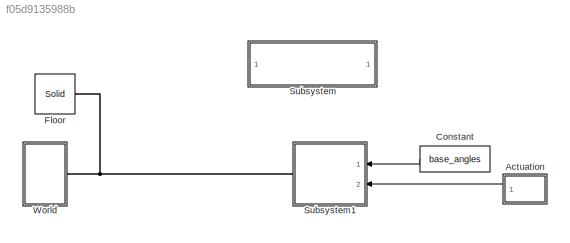
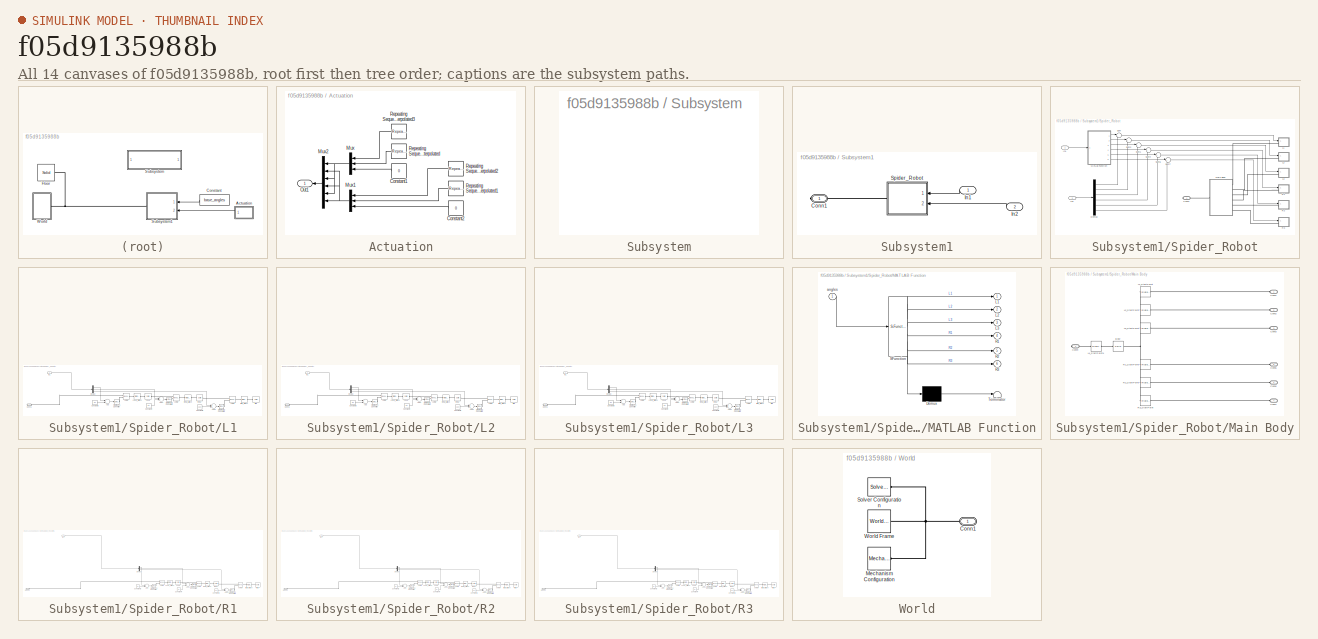
[diagram: thumbnail index - all 14 canvases of the model, root first then tree order]
MODEL slx_f05d9135988b
KIND model
CONFIG AbsTol = auto
CONFIG EnableMultiTasking = on
CONFIG FixedStep = 0.01
CONFIG MaxStep = auto
CONFIG MinStep = auto
CONFIG RelTol = 1e-3
CONFIG SampleTimeConstraint = Unconstrained
CONFIG Solver = FixedStepAuto
CONFIG SolverName = FixedStepAuto
CONFIG StartTime = 0.0
CONFIG StopTime = 20
BLOCK [SubSystem] Actuation
  Ports = [0, 1]
  RequestExecContextInheritance = off
BLOCK [Constant] Actuation/Constant1
  Value = 0
BLOCK [Constant] Actuation/Constant2
  Value = 0
BLOCK [Mux] Actuation/Mux
  DisplayOption = bar
  Inputs = 3
  Ports = [3, 1]
BLOCK [Mux] Actuation/Mux1
  DisplayOption = bar
  Inputs = 3
  Ports = [3, 1]
BLOCK [Mux] Actuation/Mux2
  DisplayOption = bar
  Inputs = 6
  Ports = [6, 1]
BLOCK [Outport] Actuation/Out1
  IconDisplay = Port number
BLOCK [Reference] Actuation/Repeating Sequence Interpolated  REF=simulink/Sources/Repeating
Sequence
Interpolated
  Ports = [0, 1]
  SourceBlock = simulink/Sources/Repeating\nSequence\nInterpolated
  SourceProductBaseCode = SL
  SourceProductName = Simulink
  SourceType = Repeating Sequence Interpolated
BLOCK [Reference] Actuation/Repeating Sequence Interpolated1  REF=simulink/Sources/Repeating
Sequence
Interpolated
  Ports = [0, 1]
  SourceBlock = simulink/Sources/Repeating\nSequence\nInterpolated
  SourceProductBaseCode = SL
  SourceProductName = Simulink
  SourceType = Repeating Sequence Interpolated
BLOCK [Reference] Actuation/Repeating Sequence Interpolated2  REF=simulink/Sources/Repeating
Sequence
Interpolated
  Ports = [0, 1]
  SourceBlock = simulink/Sources/Repeating\nSequence\nInterpolated
  SourceProductBaseCode = SL
  SourceProductName = Simulink
  SourceType = Repeating Sequence Interpolated
BLOCK [Reference] Actuation/Repeating Sequence Interpolated3  REF=simulink/Sources/Repeating
Sequence
Interpolated
  Ports = [0, 1]
  SourceBlock = simulink/Sources/Repeating\nSequence\nInterpolated
  SourceProductBaseCode = SL
  SourceProductName = Simulink
  SourceType = Repeating Sequence Interpolated
BLOCK [Constant] Constant
  Value = base_angles
BLOCK [Reference] Floor  REF=sm_lib/Body Elements/Solid
  Ports = [0, 0, 0, 0, 0, 0, 1]
  SourceBlock = sm_lib/Body Elements/Solid
  SourceProductBaseCode = MS
  SourceProductName = Simscape Multibody
  SourceType = Solid
BLOCK [SubSystem] Subsystem
  OpenFcn = open_system('sm_lib')
  Ports = []
  RequestExecContextInheritance = off
  ShowPortLabels = none
BLOCK [SubSystem] Subsystem1
  Ports = [2, 0, 0, 0, 0, 0, 1]
  RequestExecContextInheritance = off
BLOCK [PMIOPort] Subsystem1/Conn1
  Side = Right
BLOCK [Inport] Subsystem1/In1
  IconDisplay = Port number
BLOCK [Inport] Subsystem1/In2
  IconDisplay = Port number
  Port = 2
BLOCK [SubSystem] Subsystem1/Spider_Robot
  Ports = [2, 0, 0, 0, 0, 0, 1]
  RequestExecContextInheritance = off
BLOCK [PMIOPort] Subsystem1/Spider_Robot/Conn1
  Side = Right
BLOCK [Demux] Subsystem1/Spider_Robot/Demux
  DisplayOption = bar
  Outputs = 6
  Ports = [1, 6]
BLOCK [Inport] Subsystem1/Spider_Robot/In1
  IconDisplay = Port number
BLOCK [Inport] Subsystem1/Spider_Robot/In2
  IconDisplay = Port number
  Port = 2
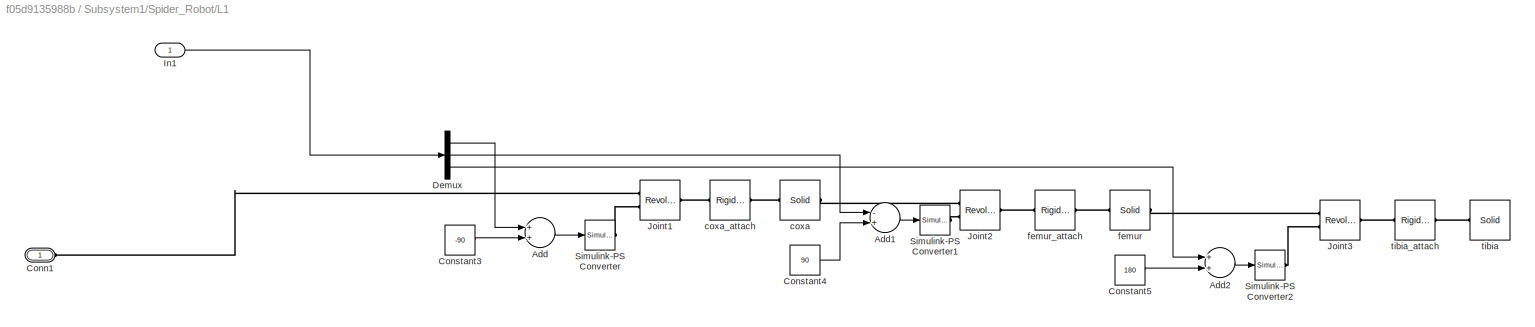
BLOCK [SubSystem] Subsystem1/Spider_Robot/L1
  Ports = [1, 0, 0, 0, 0, 1]
  RequestExecContextInheritance = off
BLOCK [Sum] Subsystem1/Spider_Robot/L1/Add
  InputSameDT = off
  OutDataTypeStr = Inherit: Inherit via internal rule
  Ports = [2, 1]
  SaturateOnIntegerOverflow = off
BLOCK [Sum] Subsystem1/Spider_Robot/L1/Add1
  InputSameDT = off
  Inputs = -+
  OutDataTypeStr = Inherit: Inherit via internal rule
  Ports = [2, 1]
  SaturateOnIntegerOverflow = off
BLOCK [Sum] Subsystem1/Spider_Robot/L1/Add2
  InputSameDT = off
  OutDataTypeStr = Inherit: Inherit via internal rule
  Ports = [2, 1]
  SaturateOnIntegerOverflow = off
BLOCK [PMIOPort] Subsystem1/Spider_Robot/L1/Conn1
  Side = Left
BLOCK [Constant] Subsystem1/Spider_Robot/L1/Constant3
  Value = -90
BLOCK [Constant] Subsystem1/Spider_Robot/L1/Constant4
  Value = 90
BLOCK [Constant] Subsystem1/Spider_Robot/L1/Constant5
  Value = 180
BLOCK [Demux] Subsystem1/Spider_Robot/L1/Demux
  DisplayOption = bar
  Outputs = 3
  Ports = [1, 3]
BLOCK [Inport] Subsystem1/Spider_Robot/L1/In1
  IconDisplay = Port number
BLOCK [Reference] Subsystem1/Spider_Robot/L1/Joint1  REF=sm_lib/Joints/Revolute Joint
  Ports = [0, 0, 0, 0, 0, 2, 1]
  SourceBlock = sm_lib/Joints/Revolute Joint
  SourceProductBaseCode = MS
  SourceProductName = Simscape Multibody
  SourceType = Revolute Joint
BLOCK [Reference] Subsystem1/Spider_Robot/L1/Joint2  REF=sm_lib/Joints/Revolute Joint
  Ports = [0, 0, 0, 0, 0, 2, 1]
  SourceBlock = sm_lib/Joints/Revolute Joint
  SourceProductBaseCode = MS
  SourceProductName = Simscape Multibody
  SourceType = Revolute Joint
BLOCK [Reference] Subsystem1/Spider_Robot/L1/Joint3  REF=sm_lib/Joints/Revolute Joint
  Ports = [0, 0, 0, 0, 0, 2, 1]
  SourceBlock = sm_lib/Joints/Revolute Joint
  SourceProductBaseCode = MS
  SourceProductName = Simscape Multibody
  SourceType = Revolute Joint
BLOCK [Reference] Subsystem1/Spider_Robot/L1/Simulink-PS Converter  REF=nesl_utility/Simulink-PS
Converter
  Ports = [1, 0, 0, 0, 0, 0, 1]
  SourceBlock = nesl_utility/Simulink-PS\nConverter
  SourceProductBaseCode = SS
  SourceProductName = Simscape
  SourceType = Simulink-PS\nConverter
BLOCK [Reference] Subsystem1/Spider_Robot/L1/Simulink-PS Converter1  REF=nesl_utility/Simulink-PS
Converter
  Ports = [1, 0, 0, 0, 0, 0, 1]
  SourceBlock = nesl_utility/Simulink-PS\nConverter
  SourceProductBaseCode = SS
  SourceProductName = Simscape
  SourceType = Simulink-PS\nConverter
BLOCK [Reference] Subsystem1/Spider_Robot/L1/Simulink-PS Converter2  REF=nesl_utility/Simulink-PS
Converter
  Ports = [1, 0, 0, 0, 0, 0, 1]
  SourceBlock = nesl_utility/Simulink-PS\nConverter
  SourceProductBaseCode = SS
  SourceProductName = Simscape
  SourceType = Simulink-PS\nConverter
BLOCK [Reference] Subsystem1/Spider_Robot/L1/coxa  REF=sm_lib/Body Elements/Solid
  Ports = [0, 0, 0, 0, 0, 1, 1]
  SourceBlock = sm_lib/Body Elements/Solid
  SourceProductBaseCode = MS
  SourceProductName = Simscape Multibody
  SourceType = Solid
BLOCK [Reference] Subsystem1/Spider_Robot/L1/coxa_attach  REF=sm_lib/Frames and
Transforms/Rigid
Transform
  Ports = [0, 0, 0, 0, 0, 1, 1]
  SourceBlock = sm_lib/Frames and\nTransforms/Rigid\nTransform
  SourceProductBaseCode = MS
  SourceProductName = Simscape Multibody
  SourceType = Rigid\nTransform
BLOCK [Reference] Subsystem1/Spider_Robot/L1/femur  REF=sm_lib/Body Elements/Solid
  Ports = [0, 0, 0, 0, 0, 1, 1]
  SourceBlock = sm_lib/Body Elements/Solid
  SourceProductBaseCode = MS
  SourceProductName = Simscape Multibody
  SourceType = Solid
BLOCK [Reference] Subsystem1/Spider_Robot/L1/femur_attach  REF=sm_lib/Frames and
Transforms/Rigid
Transform
  Ports = [0, 0, 0, 0, 0, 1, 1]
  SourceBlock = sm_lib/Frames and\nTransforms/Rigid\nTransform
  SourceProductBaseCode = MS
  SourceProductName = Simscape Multibody
  SourceType = Rigid\nTransform
BLOCK [Reference] Subsystem1/Spider_Robot/L1/tibia  REF=sm_lib/Body Elements/Solid
  Ports = [0, 0, 0, 0, 0, 1]
  SourceBlock = sm_lib/Body Elements/Solid
  SourceProductBaseCode = MS
  SourceProductName = Simscape Multibody
  SourceType = Solid
BLOCK [Reference] Subsystem1/Spider_Robot/L1/tibia_attach  REF=sm_lib/Frames and
Transforms/Rigid
Transform
  Ports = [0, 0, 0, 0, 0, 1, 1]
  SourceBlock = sm_lib/Frames and\nTransforms/Rigid\nTransform
  SourceProductBaseCode = MS
  SourceProductName = Simscape Multibody
  SourceType = Rigid\nTransform
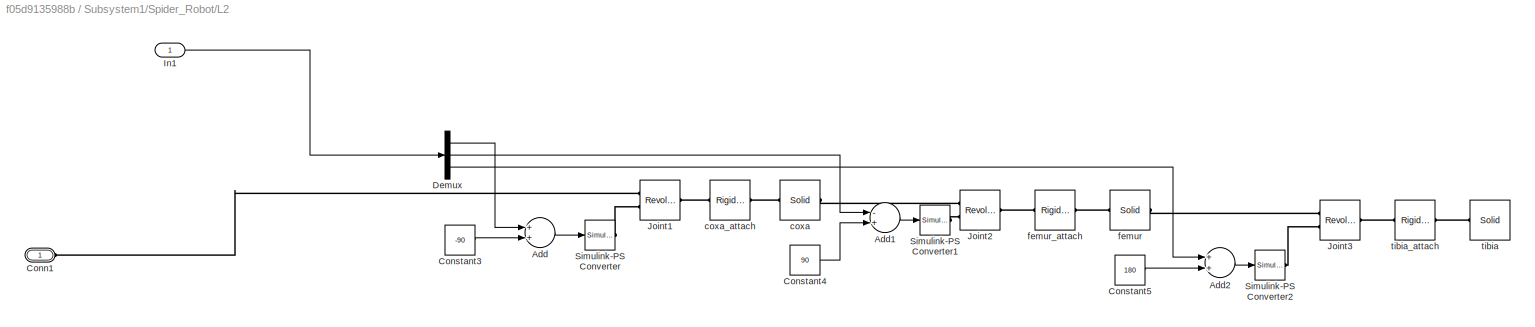
BLOCK [SubSystem] Subsystem1/Spider_Robot/L2
  Ports = [1, 0, 0, 0, 0, 1]
  RequestExecContextInheritance = off
BLOCK [Sum] Subsystem1/Spider_Robot/L2/Add
  InputSameDT = off
  OutDataTypeStr = Inherit: Inherit via internal rule
  Ports = [2, 1]
  SaturateOnIntegerOverflow = off
BLOCK [Sum] Subsystem1/Spider_Robot/L2/Add1
  InputSameDT = off
  Inputs = -+
  OutDataTypeStr = Inherit: Inherit via internal rule
  Ports = [2, 1]
  SaturateOnIntegerOverflow = off
BLOCK [Sum] Subsystem1/Spider_Robot/L2/Add2
  InputSameDT = off
  OutDataTypeStr = Inherit: Inherit via internal rule
  Ports = [2, 1]
  SaturateOnIntegerOverflow = off
BLOCK [PMIOPort] Subsystem1/Spider_Robot/L2/Conn1
  Side = Left
BLOCK [Constant] Subsystem1/Spider_Robot/L2/Constant3
  Value = -90
BLOCK [Constant] Subsystem1/Spider_Robot/L2/Constant4
  Value = 90
BLOCK [Constant] Subsystem1/Spider_Robot/L2/Constant5
  Value = 180
BLOCK [Demux] Subsystem1/Spider_Robot/L2/Demux
  DisplayOption = bar
  Outputs = 3
  Ports = [1, 3]
BLOCK [Inport] Subsystem1/Spider_Robot/L2/In1
  IconDisplay = Port number
BLOCK [Reference] Subsystem1/Spider_Robot/L2/Joint1  REF=sm_lib/Joints/Revolute Joint
  Ports = [0, 0, 0, 0, 0, 2, 1]
  SourceBlock = sm_lib/Joints/Revolute Joint
  SourceProductBaseCode = MS
  SourceProductName = Simscape Multibody
  SourceType = Revolute Joint
BLOCK [Reference] Subsystem1/Spider_Robot/L2/Joint2  REF=sm_lib/Joints/Revolute Joint
  Ports = [0, 0, 0, 0, 0, 2, 1]
  SourceBlock = sm_lib/Joints/Revolute Joint
  SourceProductBaseCode = MS
  SourceProductName = Simscape Multibody
  SourceType = Revolute Joint
BLOCK [Reference] Subsystem1/Spider_Robot/L2/Joint3  REF=sm_lib/Joints/Revolute Joint
  Ports = [0, 0, 0, 0, 0, 2, 1]
  SourceBlock = sm_lib/Joints/Revolute Joint
  SourceProductBaseCode = MS
  SourceProductName = Simscape Multibody
  SourceType = Revolute Joint
BLOCK [Reference] Subsystem1/Spider_Robot/L2/Simulink-PS Converter  REF=nesl_utility/Simulink-PS
Converter
  Ports = [1, 0, 0, 0, 0, 0, 1]
  SourceBlock = nesl_utility/Simulink-PS\nConverter
  SourceProductBaseCode = SS
  SourceProductName = Simscape
  SourceType = Simulink-PS\nConverter
BLOCK [Reference] Subsystem1/Spider_Robot/L2/Simulink-PS Converter1  REF=nesl_utility/Simulink-PS
Converter
  Ports = [1, 0, 0, 0, 0, 0, 1]
  SourceBlock = nesl_utility/Simulink-PS\nConverter
  SourceProductBaseCode = SS
  SourceProductName = Simscape
  SourceType = Simulink-PS\nConverter
BLOCK [Reference] Subsystem1/Spider_Robot/L2/Simulink-PS Converter2  REF=nesl_utility/Simulink-PS
Converter
  Ports = [1, 0, 0, 0, 0, 0, 1]
  SourceBlock = nesl_utility/Simulink-PS\nConverter
  SourceProductBaseCode = SS
  SourceProductName = Simscape
  SourceType = Simulink-PS\nConverter
BLOCK [Reference] Subsystem1/Spider_Robot/L2/coxa  REF=sm_lib/Body Elements/Solid
  Ports = [0, 0, 0, 0, 0, 1, 1]
  SourceBlock = sm_lib/Body Elements/Solid
  SourceProductBaseCode = MS
  SourceProductName = Simscape Multibody
  SourceType = Solid
BLOCK [Reference] Subsystem1/Spider_Robot/L2/coxa_attach  REF=sm_lib/Frames and
Transforms/Rigid
Transform
  Ports = [0, 0, 0, 0, 0, 1, 1]
  SourceBlock = sm_lib/Frames and\nTransforms/Rigid\nTransform
  SourceProductBaseCode = MS
  SourceProductName = Simscape Multibody
  SourceType = Rigid\nTransform
BLOCK [Reference] Subsystem1/Spider_Robot/L2/femur  REF=sm_lib/Body Elements/Solid
  Ports = [0, 0, 0, 0, 0, 1, 1]
  SourceBlock = sm_lib/Body Elements/Solid
  SourceProductBaseCode = MS
  SourceProductName = Simscape Multibody
  SourceType = Solid
BLOCK [Reference] Subsystem1/Spider_Robot/L2/femur_attach  REF=sm_lib/Frames and
Transforms/Rigid
Transform
  Ports = [0, 0, 0, 0, 0, 1, 1]
  SourceBlock = sm_lib/Frames and\nTransforms/Rigid\nTransform
  SourceProductBaseCode = MS
  SourceProductName = Simscape Multibody
  SourceType = Rigid\nTransform
BLOCK [Reference] Subsystem1/Spider_Robot/L2/tibia  REF=sm_lib/Body Elements/Solid
  Ports = [0, 0, 0, 0, 0, 1]
  SourceBlock = sm_lib/Body Elements/Solid
  SourceProductBaseCode = MS
  SourceProductName = Simscape Multibody
  SourceType = Solid
BLOCK [Reference] Subsystem1/Spider_Robot/L2/tibia_attach  REF=sm_lib/Frames and
Transforms/Rigid
Transform
  Ports = [0, 0, 0, 0, 0, 1, 1]
  SourceBlock = sm_lib/Frames and\nTransforms/Rigid\nTransform
  SourceProductBaseCode = MS
  SourceProductName = Simscape Multibody
  SourceType = Rigid\nTransform
BLOCK [SubSystem] Subsystem1/Spider_Robot/L3
  Ports = [1, 0, 0, 0, 0, 1]
  RequestExecContextInheritance = off
BLOCK [Sum] Subsystem1/Spider_Robot/L3/Add
  InputSameDT = off
  OutDataTypeStr = Inherit: Inherit via internal rule
  Ports = [2, 1]
  SaturateOnIntegerOverflow = off
BLOCK [Sum] Subsystem1/Spider_Robot/L3/Add1
  InputSameDT = off
  Inputs = -+
  OutDataTypeStr = Inherit: Inherit via internal rule
  Ports = [2, 1]
  SaturateOnIntegerOverflow = off
BLOCK [Sum] Subsystem1/Spider_Robot/L3/Add2
  InputSameDT = off
  OutDataTypeStr = Inherit: Inherit via internal rule
  Ports = [2, 1]
  SaturateOnIntegerOverflow = off
BLOCK [PMIOPort] Subsystem1/Spider_Robot/L3/Conn1
  Side = Left
BLOCK [Constant] Subsystem1/Spider_Robot/L3/Constant3
  Value = -90
BLOCK [Constant] Subsystem1/Spider_Robot/L3/Constant4
  Value = 90
BLOCK [Constant] Subsystem1/Spider_Robot/L3/Constant5
  Value = 180
BLOCK [Demux] Subsystem1/Spider_Robot/L3/Demux
  DisplayOption = bar
  Outputs = 3
  Ports = [1, 3]
BLOCK [Inport] Subsystem1/Spider_Robot/L3/In1
  IconDisplay = Port number
BLOCK [Reference] Subsystem1/Spider_Robot/L3/Joint1  REF=sm_lib/Joints/Revolute Joint
  Ports = [0, 0, 0, 0, 0, 2, 1]
  SourceBlock = sm_lib/Joints/Revolute Joint
  SourceProductBaseCode = MS
  SourceProductName = Simscape Multibody
  SourceType = Revolute Joint
BLOCK [Reference] Subsystem1/Spider_Robot/L3/Joint2  REF=sm_lib/Joints/Revolute Joint
  Ports = [0, 0, 0, 0, 0, 2, 1]
  SourceBlock = sm_lib/Joints/Revolute Joint
  SourceProductBaseCode = MS
  SourceProductName = Simscape Multibody
  SourceType = Revolute Joint
BLOCK [Reference] Subsystem1/Spider_Robot/L3/Joint3  REF=sm_lib/Joints/Revolute Joint
  Ports = [0, 0, 0, 0, 0, 2, 1]
  SourceBlock = sm_lib/Joints/Revolute Joint
  SourceProductBaseCode = MS
  SourceProductName = Simscape Multibody
  SourceType = Revolute Joint
BLOCK [Reference] Subsystem1/Spider_Robot/L3/Simulink-PS Converter  REF=nesl_utility/Simulink-PS
Converter
  Ports = [1, 0, 0, 0, 0, 0, 1]
  SourceBlock = nesl_utility/Simulink-PS\nConverter
  SourceProductBaseCode = SS
  SourceProductName = Simscape
  SourceType = Simulink-PS\nConverter
BLOCK [Reference] Subsystem1/Spider_Robot/L3/Simulink-PS Converter1  REF=nesl_utility/Simulink-PS
Converter
  Ports = [1, 0, 0, 0, 0, 0, 1]
  SourceBlock = nesl_utility/Simulink-PS\nConverter
  SourceProductBaseCode = SS
  SourceProductName = Simscape
  SourceType = Simulink-PS\nConverter
BLOCK [Reference] Subsystem1/Spider_Robot/L3/Simulink-PS Converter2  REF=nesl_utility/Simulink-PS
Converter
  Ports = [1, 0, 0, 0, 0, 0, 1]
  SourceBlock = nesl_utility/Simulink-PS\nConverter
  SourceProductBaseCode = SS
  SourceProductName = Simscape
  SourceType = Simulink-PS\nConverter
BLOCK [Reference] Subsystem1/Spider_Robot/L3/coxa  REF=sm_lib/Body Elements/Solid
  Ports = [0, 0, 0, 0, 0, 1, 1]
  SourceBlock = sm_lib/Body Elements/Solid
  SourceProductBaseCode = MS
  SourceProductName = Simscape Multibody
  SourceType = Solid
BLOCK [Reference] Subsystem1/Spider_Robot/L3/coxa_attach  REF=sm_lib/Frames and
Transforms/Rigid
Transform
  Ports = [0, 0, 0, 0, 0, 1, 1]
  SourceBlock = sm_lib/Frames and\nTransforms/Rigid\nTransform
  SourceProductBaseCode = MS
  SourceProductName = Simscape Multibody
  SourceType = Rigid\nTransform
BLOCK [Reference] Subsystem1/Spider_Robot/L3/femur  REF=sm_lib/Body Elements/Solid
  Ports = [0, 0, 0, 0, 0, 1, 1]
  SourceBlock = sm_lib/Body Elements/Solid
  SourceProductBaseCode = MS
  SourceProductName = Simscape Multibody
  SourceType = Solid
BLOCK [Reference] Subsystem1/Spider_Robot/L3/femur_attach  REF=sm_lib/Frames and
Transforms/Rigid
Transform
  Ports = [0, 0, 0, 0, 0, 1, 1]
  SourceBlock = sm_lib/Frames and\nTransforms/Rigid\nTransform
  SourceProductBaseCode = MS
  SourceProductName = Simscape Multibody
  SourceType = Rigid\nTransform
BLOCK [Reference] Subsystem1/Spider_Robot/L3/tibia  REF=sm_lib/Body Elements/Solid
  Ports = [0, 0, 0, 0, 0, 1]
  SourceBlock = sm_lib/Body Elements/Solid
  SourceProductBaseCode = MS
  SourceProductName = Simscape Multibody
  SourceType = Solid
BLOCK [Reference] Subsystem1/Spider_Robot/L3/tibia_attach  REF=sm_lib/Frames and
Transforms/Rigid
Transform
  Ports = [0, 0, 0, 0, 0, 1, 1]
  SourceBlock = sm_lib/Frames and\nTransforms/Rigid\nTransform
  SourceProductBaseCode = MS
  SourceProductName = Simscape Multibody
  SourceType = Rigid\nTransform
BLOCK [SubSystem] Subsystem1/Spider_Robot/MATLAB Function
  ErrorFcn = Stateflow.Translate.translate
  PermitHierarchicalResolution = ExplicitOnly
  Ports = [1, 6]
  RequestExecContextInheritance = off
  SFBlockType = MATLAB Function
  TreatAsAtomicUnit = on
BLOCK [Demux] Subsystem1/Spider_Robot/MATLAB Function/ Demux 
  Outputs = 1
  Ports = [1, 1]
BLOCK [S-Function] Subsystem1/Spider_Robot/MATLAB Function/ SFunction 
  EnableBusSupport = on
  FunctionName = sf_sfun
  PortCounts = [1 7]
  Ports = [1, 7]
  SFcnIsStateOwnerBlock = off
  SFunctionDeploymentMode = off
  Tag = Stateflow S-Function spider_basic 2
BLOCK [Terminator] Subsystem1/Spider_Robot/MATLAB Function/ Terminator 
BLOCK [Outport] Subsystem1/Spider_Robot/MATLAB Function/L1
  IconDisplay = Port number
BLOCK [Outport] Subsystem1/Spider_Robot/MATLAB Function/L2
  IconDisplay = Port number
  Port = 2
BLOCK [Outport] Subsystem1/Spider_Robot/MATLAB Function/L3
  IconDisplay = Port number
  Port = 3
BLOCK [Outport] Subsystem1/Spider_Robot/MATLAB Function/R1
  IconDisplay = Port number
  Port = 4
BLOCK [Outport] Subsystem1/Spider_Robot/MATLAB Function/R2
  IconDisplay = Port number
  Port = 5
BLOCK [Outport] Subsystem1/Spider_Robot/MATLAB Function/R3
  IconDisplay = Port number
  Port = 6
BLOCK [Inport] Subsystem1/Spider_Robot/MATLAB Function/angles
  IconDisplay = Port number
BLOCK [SubSystem] Subsystem1/Spider_Robot/Main Body
  Ports = [0, 0, 0, 0, 0, 6, 1]
  RequestExecContextInheritance = off
BLOCK [Reference] Subsystem1/Spider_Robot/Main Body/Body  REF=sm_lib/Body Elements/Solid
  Ports = [0, 0, 0, 0, 0, 1, 1]
  SourceBlock = sm_lib/Body Elements/Solid
  SourceProductBaseCode = MS
  SourceProductName = Simscape Multibody
  SourceType = Solid
BLOCK [PMIOPort] Subsystem1/Spider_Robot/Main Body/Conn1
  Side = Left
BLOCK [PMIOPort] Subsystem1/Spider_Robot/Main Body/Conn2
  Port = 2
  Side = Left
BLOCK [PMIOPort] Subsystem1/Spider_Robot/Main Body/Conn3
  Port = 3
  Side = Left
BLOCK [PMIOPort] Subsystem1/Spider_Robot/Main Body/Conn4
  Port = 4
  Side = Right
BLOCK [PMIOPort] Subsystem1/Spider_Robot/Main Body/Conn5
  Port = 5
  Side = Left
BLOCK [PMIOPort] Subsystem1/Spider_Robot/Main Body/Conn6
  Port = 6
  Side = Left
BLOCK [PMIOPort] Subsystem1/Spider_Robot/Main Body/Conn7
  Port = 7
  Side = Left
BLOCK [Reference] Subsystem1/Spider_Robot/Main Body/L1_StartPoint  REF=sm_lib/Frames and
Transforms/Rigid
Transform
  Ports = [0, 0, 0, 0, 0, 1, 1]
  SourceBlock = sm_lib/Frames and\nTransforms/Rigid\nTransform
  SourceProductBaseCode = MS
  SourceProductName = Simscape Multibody
  SourceType = Rigid\nTransform
BLOCK [Reference] Subsystem1/Spider_Robot/Main Body/L1_StartPoint1  REF=sm_lib/Frames and
Transforms/Rigid
Transform
  Ports = [0, 0, 0, 0, 0, 1, 1]
  SourceBlock = sm_lib/Frames and\nTransforms/Rigid\nTransform
  SourceProductBaseCode = MS
  SourceProductName = Simscape Multibody
  SourceType = Rigid\nTransform
BLOCK [Reference] Subsystem1/Spider_Robot/Main Body/L2_StartPoint  REF=sm_lib/Frames and
Transforms/Rigid
Transform
  Ports = [0, 0, 0, 0, 0, 1, 1]
  SourceBlock = sm_lib/Frames and\nTransforms/Rigid\nTransform
  SourceProductBaseCode = MS
  SourceProductName = Simscape Multibody
  SourceType = Rigid\nTransform
BLOCK [Reference] Subsystem1/Spider_Robot/Main Body/L3_StartPoint  REF=sm_lib/Frames and
Transforms/Rigid
Transform
  Ports = [0, 0, 0, 0, 0, 1, 1]
  SourceBlock = sm_lib/Frames and\nTransforms/Rigid\nTransform
  SourceProductBaseCode = MS
  SourceProductName = Simscape Multibody
  SourceType = Rigid\nTransform
BLOCK [Reference] Subsystem1/Spider_Robot/Main Body/R1_StartPoint  REF=sm_lib/Frames and
Transforms/Rigid
Transform
  Ports = [0, 0, 0, 0, 0, 1, 1]
  SourceBlock = sm_lib/Frames and\nTransforms/Rigid\nTransform
  SourceProductBaseCode = MS
  SourceProductName = Simscape Multibody
  SourceType = Rigid\nTransform
BLOCK [Reference] Subsystem1/Spider_Robot/Main Body/R2_StartPoint  REF=sm_lib/Frames and
Transforms/Rigid
Transform
  Ports = [0, 0, 0, 0, 0, 1, 1]
  SourceBlock = sm_lib/Frames and\nTransforms/Rigid\nTransform
  SourceProductBaseCode = MS
  SourceProductName = Simscape Multibody
  SourceType = Rigid\nTransform
BLOCK [Reference] Subsystem1/Spider_Robot/Main Body/R3_StartPoint  REF=sm_lib/Frames and
Transforms/Rigid
Transform
  Ports = [0, 0, 0, 0, 0, 1, 1]
  SourceBlock = sm_lib/Frames and\nTransforms/Rigid\nTransform
  SourceProductBaseCode = MS
  SourceProductName = Simscape Multibody
  SourceType = Rigid\nTransform
BLOCK [SubSystem] Subsystem1/Spider_Robot/R1
  Ports = [1, 0, 0, 0, 0, 1]
  RequestExecContextInheritance = off
BLOCK [Sum] Subsystem1/Spider_Robot/R1/Add
  InputSameDT = off
  Inputs = -+
  OutDataTypeStr = Inherit: Inherit via internal rule
  Ports = [2, 1]
  SaturateOnIntegerOverflow = off
BLOCK [Sum] Subsystem1/Spider_Robot/R1/Add1
  InputSameDT = off
  Inputs = -+
  OutDataTypeStr = Inherit: Inherit via internal rule
  Ports = [2, 1]
  SaturateOnIntegerOverflow = off
BLOCK [Sum] Subsystem1/Spider_Robot/R1/Add2
  InputSameDT = off
  OutDataTypeStr = Inherit: Inherit via internal rule
  Ports = [2, 1]
  SaturateOnIntegerOverflow = off
BLOCK [PMIOPort] Subsystem1/Spider_Robot/R1/Conn1
  Side = Left
BLOCK [Constant] Subsystem1/Spider_Robot/R1/Constant3
  Value = 90
BLOCK [Constant] Subsystem1/Spider_Robot/R1/Constant4
  Value = 90
BLOCK [Constant] Subsystem1/Spider_Robot/R1/Constant5
  Value = 180
BLOCK [Demux] Subsystem1/Spider_Robot/R1/Demux
  DisplayOption = bar
  Outputs = 3
  Ports = [1, 3]
BLOCK [Inport] Subsystem1/Spider_Robot/R1/In1
  IconDisplay = Port number
BLOCK [Reference] Subsystem1/Spider_Robot/R1/Joint1  REF=sm_lib/Joints/Revolute Joint
  Ports = [0, 0, 0, 0, 0, 2, 1]
  SourceBlock = sm_lib/Joints/Revolute Joint
  SourceProductBaseCode = MS
  SourceProductName = Simscape Multibody
  SourceType = Revolute Joint
BLOCK [Reference] Subsystem1/Spider_Robot/R1/Joint2  REF=sm_lib/Joints/Revolute Joint
  Ports = [0, 0, 0, 0, 0, 2, 1]
  SourceBlock = sm_lib/Joints/Revolute Joint
  SourceProductBaseCode = MS
  SourceProductName = Simscape Multibody
  SourceType = Revolute Joint
BLOCK [Reference] Subsystem1/Spider_Robot/R1/Joint3  REF=sm_lib/Joints/Revolute Joint
  Ports = [0, 0, 0, 0, 0, 2, 1]
  SourceBlock = sm_lib/Joints/Revolute Joint
  SourceProductBaseCode = MS
  SourceProductName = Simscape Multibody
  SourceType = Revolute Joint
BLOCK [Reference] Subsystem1/Spider_Robot/R1/Simulink-PS Converter  REF=nesl_utility/Simulink-PS
Converter
  Ports = [1, 0, 0, 0, 0, 0, 1]
  SourceBlock = nesl_utility/Simulink-PS\nConverter
  SourceProductBaseCode = SS
  SourceProductName = Simscape
  SourceType = Simulink-PS\nConverter
BLOCK [Reference] Subsystem1/Spider_Robot/R1/Simulink-PS Converter1  REF=nesl_utility/Simulink-PS
Converter
  Ports = [1, 0, 0, 0, 0, 0, 1]
  SourceBlock = nesl_utility/Simulink-PS\nConverter
  SourceProductBaseCode = SS
  SourceProductName = Simscape
  SourceType = Simulink-PS\nConverter
BLOCK [Reference] Subsystem1/Spider_Robot/R1/Simulink-PS Converter2  REF=nesl_utility/Simulink-PS
Converter
  Ports = [1, 0, 0, 0, 0, 0, 1]
  SourceBlock = nesl_utility/Simulink-PS\nConverter
  SourceProductBaseCode = SS
  SourceProductName = Simscape
  SourceType = Simulink-PS\nConverter
BLOCK [Reference] Subsystem1/Spider_Robot/R1/coxa  REF=sm_lib/Body Elements/Solid
  Ports = [0, 0, 0, 0, 0, 1, 1]
  SourceBlock = sm_lib/Body Elements/Solid
  SourceProductBaseCode = MS
  SourceProductName = Simscape Multibody
  SourceType = Solid
BLOCK [Reference] Subsystem1/Spider_Robot/R1/coxa_attach  REF=sm_lib/Frames and
Transforms/Rigid
Transform
  Ports = [0, 0, 0, 0, 0, 1, 1]
  SourceBlock = sm_lib/Frames and\nTransforms/Rigid\nTransform
  SourceProductBaseCode = MS
  SourceProductName = Simscape Multibody
  SourceType = Rigid\nTransform
BLOCK [Reference] Subsystem1/Spider_Robot/R1/femur  REF=sm_lib/Body Elements/Solid
  Ports = [0, 0, 0, 0, 0, 1, 1]
  SourceBlock = sm_lib/Body Elements/Solid
  SourceProductBaseCode = MS
  SourceProductName = Simscape Multibody
  SourceType = Solid
BLOCK [Reference] Subsystem1/Spider_Robot/R1/femur_attach  REF=sm_lib/Frames and
Transforms/Rigid
Transform
  Ports = [0, 0, 0, 0, 0, 1, 1]
  SourceBlock = sm_lib/Frames and\nTransforms/Rigid\nTransform
  SourceProductBaseCode = MS
  SourceProductName = Simscape Multibody
  SourceType = Rigid\nTransform
BLOCK [Reference] Subsystem1/Spider_Robot/R1/tibia  REF=sm_lib/Body Elements/Solid
  Ports = [0, 0, 0, 0, 0, 1]
  SourceBlock = sm_lib/Body Elements/Solid
  SourceProductBaseCode = MS
  SourceProductName = Simscape Multibody
  SourceType = Solid
BLOCK [Reference] Subsystem1/Spider_Robot/R1/tibia_attach  REF=sm_lib/Frames and
Transforms/Rigid
Transform
  Ports = [0, 0, 0, 0, 0, 1, 1]
  SourceBlock = sm_lib/Frames and\nTransforms/Rigid\nTransform
  SourceProductBaseCode = MS
  SourceProductName = Simscape Multibody
  SourceType = Rigid\nTransform
BLOCK [SubSystem] Subsystem1/Spider_Robot/R2
  Ports = [1, 0, 0, 0, 0, 1]
  RequestExecContextInheritance = off
BLOCK [Sum] Subsystem1/Spider_Robot/R2/Add
  InputSameDT = off
  Inputs = -+
  OutDataTypeStr = Inherit: Inherit via internal rule
  Ports = [2, 1]
  SaturateOnIntegerOverflow = off
BLOCK [Sum] Subsystem1/Spider_Robot/R2/Add1
  InputSameDT = off
  Inputs = -+
  OutDataTypeStr = Inherit: Inherit via internal rule
  Ports = [2, 1]
  SaturateOnIntegerOverflow = off
BLOCK [Sum] Subsystem1/Spider_Robot/R2/Add2
  InputSameDT = off
  OutDataTypeStr = Inherit: Inherit via internal rule
  Ports = [2, 1]
  SaturateOnIntegerOverflow = off
BLOCK [PMIOPort] Subsystem1/Spider_Robot/R2/Conn1
  Side = Left
BLOCK [Constant] Subsystem1/Spider_Robot/R2/Constant3
  Value = 90
BLOCK [Constant] Subsystem1/Spider_Robot/R2/Constant4
  Value = 90
BLOCK [Constant] Subsystem1/Spider_Robot/R2/Constant5
  Value = 180
BLOCK [Demux] Subsystem1/Spider_Robot/R2/Demux
  DisplayOption = bar
  Outputs = 3
  Ports = [1, 3]
BLOCK [Inport] Subsystem1/Spider_Robot/R2/In1
  IconDisplay = Port number
BLOCK [Reference] Subsystem1/Spider_Robot/R2/Joint1  REF=sm_lib/Joints/Revolute Joint
  Ports = [0, 0, 0, 0, 0, 2, 1]
  SourceBlock = sm_lib/Joints/Revolute Joint
  SourceProductBaseCode = MS
  SourceProductName = Simscape Multibody
  SourceType = Revolute Joint
BLOCK [Reference] Subsystem1/Spider_Robot/R2/Joint2  REF=sm_lib/Joints/Revolute Joint
  Ports = [0, 0, 0, 0, 0, 2, 1]
  SourceBlock = sm_lib/Joints/Revolute Joint
  SourceProductBaseCode = MS
  SourceProductName = Simscape Multibody
  SourceType = Revolute Joint
BLOCK [Reference] Subsystem1/Spider_Robot/R2/Joint3  REF=sm_lib/Joints/Revolute Joint
  Ports = [0, 0, 0, 0, 0, 2, 1]
  SourceBlock = sm_lib/Joints/Revolute Joint
  SourceProductBaseCode = MS
  SourceProductName = Simscape Multibody
  SourceType = Revolute Joint
BLOCK [Reference] Subsystem1/Spider_Robot/R2/Simulink-PS Converter  REF=nesl_utility/Simulink-PS
Converter
  Ports = [1, 0, 0, 0, 0, 0, 1]
  SourceBlock = nesl_utility/Simulink-PS\nConverter
  SourceProductBaseCode = SS
  SourceProductName = Simscape
  SourceType = Simulink-PS\nConverter
BLOCK [Reference] Subsystem1/Spider_Robot/R2/Simulink-PS Converter1  REF=nesl_utility/Simulink-PS
Converter
  Ports = [1, 0, 0, 0, 0, 0, 1]
  SourceBlock = nesl_utility/Simulink-PS\nConverter
  SourceProductBaseCode = SS
  SourceProductName = Simscape
  SourceType = Simulink-PS\nConverter
BLOCK [Reference] Subsystem1/Spider_Robot/R2/Simulink-PS Converter2  REF=nesl_utility/Simulink-PS
Converter
  Ports = [1, 0, 0, 0, 0, 0, 1]
  SourceBlock = nesl_utility/Simulink-PS\nConverter
  SourceProductBaseCode = SS
  SourceProductName = Simscape
  SourceType = Simulink-PS\nConverter
BLOCK [Reference] Subsystem1/Spider_Robot/R2/coxa  REF=sm_lib/Body Elements/Solid
  Ports = [0, 0, 0, 0, 0, 1, 1]
  SourceBlock = sm_lib/Body Elements/Solid
  SourceProductBaseCode = MS
  SourceProductName = Simscape Multibody
  SourceType = Solid
BLOCK [Reference] Subsystem1/Spider_Robot/R2/coxa_attach  REF=sm_lib/Frames and
Transforms/Rigid
Transform
  Ports = [0, 0, 0, 0, 0, 1, 1]
  SourceBlock = sm_lib/Frames and\nTransforms/Rigid\nTransform
  SourceProductBaseCode = MS
  SourceProductName = Simscape Multibody
  SourceType = Rigid\nTransform
BLOCK [Reference] Subsystem1/Spider_Robot/R2/femur  REF=sm_lib/Body Elements/Solid
  Ports = [0, 0, 0, 0, 0, 1, 1]
  SourceBlock = sm_lib/Body Elements/Solid
  SourceProductBaseCode = MS
  SourceProductName = Simscape Multibody
  SourceType = Solid
BLOCK [Reference] Subsystem1/Spider_Robot/R2/femur_attach  REF=sm_lib/Frames and
Transforms/Rigid
Transform
  Ports = [0, 0, 0, 0, 0, 1, 1]
  SourceBlock = sm_lib/Frames and\nTransforms/Rigid\nTransform
  SourceProductBaseCode = MS
  SourceProductName = Simscape Multibody
  SourceType = Rigid\nTransform
BLOCK [Reference] Subsystem1/Spider_Robot/R2/tibia  REF=sm_lib/Body Elements/Solid
  Ports = [0, 0, 0, 0, 0, 1]
  SourceBlock = sm_lib/Body Elements/Solid
  SourceProductBaseCode = MS
  SourceProductName = Simscape Multibody
  SourceType = Solid
BLOCK [Reference] Subsystem1/Spider_Robot/R2/tibia_attach  REF=sm_lib/Frames and
Transforms/Rigid
Transform
  Ports = [0, 0, 0, 0, 0, 1, 1]
  SourceBlock = sm_lib/Frames and\nTransforms/Rigid\nTransform
  SourceProductBaseCode = MS
  SourceProductName = Simscape Multibody
  SourceType = Rigid\nTransform
BLOCK [SubSystem] Subsystem1/Spider_Robot/R3
  Ports = [1, 0, 0, 0, 0, 1]
  RequestExecContextInheritance = off
BLOCK [Sum] Subsystem1/Spider_Robot/R3/Add
  InputSameDT = off
  Inputs = -+
  OutDataTypeStr = Inherit: Inherit via internal rule
  Ports = [2, 1]
  SaturateOnIntegerOverflow = off
BLOCK [Sum] Subsystem1/Spider_Robot/R3/Add1
  InputSameDT = off
  Inputs = -+
  OutDataTypeStr = Inherit: Inherit via internal rule
  Ports = [2, 1]
  SaturateOnIntegerOverflow = off
BLOCK [Sum] Subsystem1/Spider_Robot/R3/Add2
  InputSameDT = off
  OutDataTypeStr = Inherit: Inherit via internal rule
  Ports = [2, 1]
  SaturateOnIntegerOverflow = off
BLOCK [PMIOPort] Subsystem1/Spider_Robot/R3/Conn1
  Side = Left
BLOCK [Constant] Subsystem1/Spider_Robot/R3/Constant3
  Value = 90
BLOCK [Constant] Subsystem1/Spider_Robot/R3/Constant4
  Value = 90
BLOCK [Constant] Subsystem1/Spider_Robot/R3/Constant5
  Value = 180
BLOCK [Demux] Subsystem1/Spider_Robot/R3/Demux
  DisplayOption = bar
  Outputs = 3
  Ports = [1, 3]
BLOCK [Inport] Subsystem1/Spider_Robot/R3/In1
  IconDisplay = Port number
BLOCK [Reference] Subsystem1/Spider_Robot/R3/Joint1  REF=sm_lib/Joints/Revolute Joint
  Ports = [0, 0, 0, 0, 0, 2, 1]
  SourceBlock = sm_lib/Joints/Revolute Joint
  SourceProductBaseCode = MS
  SourceProductName = Simscape Multibody
  SourceType = Revolute Joint
BLOCK [Reference] Subsystem1/Spider_Robot/R3/Joint2  REF=sm_lib/Joints/Revolute Joint
  Ports = [0, 0, 0, 0, 0, 2, 1]
  SourceBlock = sm_lib/Joints/Revolute Joint
  SourceProductBaseCode = MS
  SourceProductName = Simscape Multibody
  SourceType = Revolute Joint
BLOCK [Reference] Subsystem1/Spider_Robot/R3/Joint3  REF=sm_lib/Joints/Revolute Joint
  Ports = [0, 0, 0, 0, 0, 2, 1]
  SourceBlock = sm_lib/Joints/Revolute Joint
  SourceProductBaseCode = MS
  SourceProductName = Simscape Multibody
  SourceType = Revolute Joint
BLOCK [Reference] Subsystem1/Spider_Robot/R3/Simulink-PS Converter  REF=nesl_utility/Simulink-PS
Converter
  Ports = [1, 0, 0, 0, 0, 0, 1]
  SourceBlock = nesl_utility/Simulink-PS\nConverter
  SourceProductBaseCode = SS
  SourceProductName = Simscape
  SourceType = Simulink-PS\nConverter
BLOCK [Reference] Subsystem1/Spider_Robot/R3/Simulink-PS Converter1  REF=nesl_utility/Simulink-PS
Converter
  Ports = [1, 0, 0, 0, 0, 0, 1]
  SourceBlock = nesl_utility/Simulink-PS\nConverter
  SourceProductBaseCode = SS
  SourceProductName = Simscape
  SourceType = Simulink-PS\nConverter
BLOCK [Reference] Subsystem1/Spider_Robot/R3/Simulink-PS Converter2  REF=nesl_utility/Simulink-PS
Converter
  Ports = [1, 0, 0, 0, 0, 0, 1]
  SourceBlock = nesl_utility/Simulink-PS\nConverter
  SourceProductBaseCode = SS
  SourceProductName = Simscape
  SourceType = Simulink-PS\nConverter
BLOCK [Reference] Subsystem1/Spider_Robot/R3/coxa  REF=sm_lib/Body Elements/Solid
  Ports = [0, 0, 0, 0, 0, 1, 1]
  SourceBlock = sm_lib/Body Elements/Solid
  SourceProductBaseCode = MS
  SourceProductName = Simscape Multibody
  SourceType = Solid
BLOCK [Reference] Subsystem1/Spider_Robot/R3/coxa_attach  REF=sm_lib/Frames and
Transforms/Rigid
Transform
  Ports = [0, 0, 0, 0, 0, 1, 1]
  SourceBlock = sm_lib/Frames and\nTransforms/Rigid\nTransform
  SourceProductBaseCode = MS
  SourceProductName = Simscape Multibody
  SourceType = Rigid\nTransform
BLOCK [Reference] Subsystem1/Spider_Robot/R3/femur  REF=sm_lib/Body Elements/Solid
  Ports = [0, 0, 0, 0, 0, 1, 1]
  SourceBlock = sm_lib/Body Elements/Solid
  SourceProductBaseCode = MS
  SourceProductName = Simscape Multibody
  SourceType = Solid
BLOCK [Reference] Subsystem1/Spider_Robot/R3/femur_attach  REF=sm_lib/Frames and
Transforms/Rigid
Transform
  Ports = [0, 0, 0, 0, 0, 1, 1]
  SourceBlock = sm_lib/Frames and\nTransforms/Rigid\nTransform
  SourceProductBaseCode = MS
  SourceProductName = Simscape Multibody
  SourceType = Rigid\nTransform
BLOCK [Reference] Subsystem1/Spider_Robot/R3/tibia  REF=sm_lib/Body Elements/Solid
  Ports = [0, 0, 0, 0, 0, 1]
  SourceBlock = sm_lib/Body Elements/Solid
  SourceProductBaseCode = MS
  SourceProductName = Simscape Multibody
  SourceType = Solid
BLOCK [Reference] Subsystem1/Spider_Robot/R3/tibia_attach  REF=sm_lib/Frames and
Transforms/Rigid
Transform
  Ports = [0, 0, 0, 0, 0, 1, 1]
  SourceBlock = sm_lib/Frames and\nTransforms/Rigid\nTransform
  SourceProductBaseCode = MS
  SourceProductName = Simscape Multibody
  SourceType = Rigid\nTransform
BLOCK [Sum] Subsystem1/Spider_Robot/Sum
  IconShape = round
  InputSameDT = off
  Inputs = |++
  OutDataTypeStr = Inherit: Inherit via internal rule
  Ports = [2, 1]
  SaturateOnIntegerOverflow = off
BLOCK [Sum] Subsystem1/Spider_Robot/Sum1
  IconShape = round
  InputSameDT = off
  Inputs = |++
  OutDataTypeStr = Inherit: Inherit via internal rule
  Ports = [2, 1]
  SaturateOnIntegerOverflow = off
BLOCK [Sum] Subsystem1/Spider_Robot/Sum2
  IconShape = round
  InputSameDT = off
  Inputs = |++
  OutDataTypeStr = Inherit: Inherit via internal rule
  Ports = [2, 1]
  SaturateOnIntegerOverflow = off
BLOCK [Sum] Subsystem1/Spider_Robot/Sum4
  IconShape = round
  InputSameDT = off
  Inputs = |++
  OutDataTypeStr = Inherit: Inherit via internal rule
  Ports = [2, 1]
  SaturateOnIntegerOverflow = off
BLOCK [Sum] Subsystem1/Spider_Robot/Sum6
  IconShape = round
  InputSameDT = off
  Inputs = |++
  OutDataTypeStr = Inherit: Inherit via internal rule
  Ports = [2, 1]
  SaturateOnIntegerOverflow = off
BLOCK [Sum] Subsystem1/Spider_Robot/Sum7
  IconShape = round
  InputSameDT = off
  Inputs = |++
  OutDataTypeStr = Inherit: Inherit via internal rule
  Ports = [2, 1]
  SaturateOnIntegerOverflow = off
BLOCK [SubSystem] World
  Ports = [0, 0, 0, 0, 0, 0, 1]
  RequestExecContextInheritance = off
BLOCK [PMIOPort] World/Conn1
  Side = Right
BLOCK [Reference] World/Mechanism Configuration  REF=sm_lib/Utilities/Mechanism
Configuration
  Ports = [0, 0, 0, 0, 0, 0, 1]
  SourceBlock = sm_lib/Utilities/Mechanism\nConfiguration
  SourceProductBaseCode = MS
  SourceProductName = Simscape Multibody
  SourceType = Mechanism\nConfiguration
BLOCK [Reference] World/Solver Configuration  REF=nesl_utility/Solver
Configuration
  Ports = [0, 0, 0, 0, 0, 0, 1]
  SourceBlock = nesl_utility/Solver\nConfiguration
  SourceProductBaseCode = SS
  SourceProductName = Simscape
  SourceType = Solver\nConfiguration
BLOCK [Reference] World/World Frame  REF=sm_lib/Frames and
Transforms/World Frame
  Ports = [0, 0, 0, 0, 0, 0, 1]
  SourceBlock = sm_lib/Frames and\nTransforms/World Frame
  SourceProductBaseCode = MS
  SourceProductName = Simscape Multibody
  SourceType = World Frame
LINE Actuation/Constant1:1 -> Actuation/Mux:3
LINE Actuation/Constant2:1 -> Actuation/Mux1:3
NET Actuation/Mux1:1 -> Actuation/Mux2:2, Actuation/Mux2:4, Actuation/Mux2:6
LINE Actuation/Mux2:1 -> Actuation/Out1:1
NET Actuation/Mux:1 -> Actuation/Mux2:1, Actuation/Mux2:3, Actuation/Mux2:5
LINE Actuation/Repeating Sequence Interpolated1:1 -> Actuation/Mux1:2
LINE Actuation/Repeating Sequence Interpolated2:1 -> Actuation/Mux1:1
LINE Actuation/Repeating Sequence Interpolated3:1 -> Actuation/Mux:1
LINE Actuation/Repeating Sequence Interpolated:1 -> Actuation/Mux:2
LINE Actuation:1 -> Subsystem1:2
LINE Constant:1 -> Subsystem1:1
LINE Subsystem1/In1:1 -> Subsystem1/Spider_Robot:1
LINE Subsystem1/In2:1 -> Subsystem1/Spider_Robot:2
LINE Subsystem1/Spider_Robot/Demux:1 -> Subsystem1/Spider_Robot/Sum:2
LINE Subsystem1/Spider_Robot/Demux:2 -> Subsystem1/Spider_Robot/Sum2:2
LINE Subsystem1/Spider_Robot/Demux:3 -> Subsystem1/Spider_Robot/Sum1:2
LINE Subsystem1/Spider_Robot/Demux:4 -> Subsystem1/Spider_Robot/Sum4:2
LINE Subsystem1/Spider_Robot/Demux:5 -> Subsystem1/Spider_Robot/Sum6:2
LINE Subsystem1/Spider_Robot/Demux:6 -> Subsystem1/Spider_Robot/Sum7:2
LINE Subsystem1/Spider_Robot/In1:1 -> Subsystem1/Spider_Robot/MATLAB Function:1
LINE Subsystem1/Spider_Robot/In2:1 -> Subsystem1/Spider_Robot/Demux:1
LINE Subsystem1/Spider_Robot/L1/Add1:1 -> Subsystem1/Spider_Robot/L1/Simulink-PS Converter1:1
LINE Subsystem1/Spider_Robot/L1/Add2:1 -> Subsystem1/Spider_Robot/L1/Simulink-PS Converter2:1
LINE Subsystem1/Spider_Robot/L1/Add:1 -> Subsystem1/Spider_Robot/L1/Simulink-PS Converter:1
LINE Subsystem1/Spider_Robot/L1/Constant3:1 -> Subsystem1/Spider_Robot/L1/Add:2
LINE Subsystem1/Spider_Robot/L1/Constant4:1 -> Subsystem1/Spider_Robot/L1/Add1:2
LINE Subsystem1/Spider_Robot/L1/Constant5:1 -> Subsystem1/Spider_Robot/L1/Add2:2
LINE Subsystem1/Spider_Robot/L1/Demux:1 -> Subsystem1/Spider_Robot/L1/Add:1
LINE Subsystem1/Spider_Robot/L1/Demux:2 -> Subsystem1/Spider_Robot/L1/Add1:1
LINE Subsystem1/Spider_Robot/L1/Demux:3 -> Subsystem1/Spider_Robot/L1/Add2:1
LINE Subsystem1/Spider_Robot/L1/In1:1 -> Subsystem1/Spider_Robot/L1/Demux:1
LINE Subsystem1/Spider_Robot/L2/Add1:1 -> Subsystem1/Spider_Robot/L2/Simulink-PS Converter1:1
LINE Subsystem1/Spider_Robot/L2/Add2:1 -> Subsystem1/Spider_Robot/L2/Simulink-PS Converter2:1
LINE Subsystem1/Spider_Robot/L2/Add:1 -> Subsystem1/Spider_Robot/L2/Simulink-PS Converter:1
LINE Subsystem1/Spider_Robot/L2/Constant3:1 -> Subsystem1/Spider_Robot/L2/Add:2
LINE Subsystem1/Spider_Robot/L2/Constant4:1 -> Subsystem1/Spider_Robot/L2/Add1:2
LINE Subsystem1/Spider_Robot/L2/Constant5:1 -> Subsystem1/Spider_Robot/L2/Add2:2
LINE Subsystem1/Spider_Robot/L2/Demux:1 -> Subsystem1/Spider_Robot/L2/Add:1
LINE Subsystem1/Spider_Robot/L2/Demux:2 -> Subsystem1/Spider_Robot/L2/Add1:1
LINE Subsystem1/Spider_Robot/L2/Demux:3 -> Subsystem1/Spider_Robot/L2/Add2:1
LINE Subsystem1/Spider_Robot/L2/In1:1 -> Subsystem1/Spider_Robot/L2/Demux:1
LINE Subsystem1/Spider_Robot/L3/Add1:1 -> Subsystem1/Spider_Robot/L3/Simulink-PS Converter1:1
LINE Subsystem1/Spider_Robot/L3/Add2:1 -> Subsystem1/Spider_Robot/L3/Simulink-PS Converter2:1
LINE Subsystem1/Spider_Robot/L3/Add:1 -> Subsystem1/Spider_Robot/L3/Simulink-PS Converter:1
LINE Subsystem1/Spider_Robot/L3/Constant3:1 -> Subsystem1/Spider_Robot/L3/Add:2
LINE Subsystem1/Spider_Robot/L3/Constant4:1 -> Subsystem1/Spider_Robot/L3/Add1:2
LINE Subsystem1/Spider_Robot/L3/Constant5:1 -> Subsystem1/Spider_Robot/L3/Add2:2
LINE Subsystem1/Spider_Robot/L3/Demux:1 -> Subsystem1/Spider_Robot/L3/Add:1
LINE Subsystem1/Spider_Robot/L3/Demux:2 -> Subsystem1/Spider_Robot/L3/Add1:1
LINE Subsystem1/Spider_Robot/L3/Demux:3 -> Subsystem1/Spider_Robot/L3/Add2:1
LINE Subsystem1/Spider_Robot/L3/In1:1 -> Subsystem1/Spider_Robot/L3/Demux:1
LINE Subsystem1/Spider_Robot/MATLAB Function:1 -> Subsystem1/Spider_Robot/Sum:1
LINE Subsystem1/Spider_Robot/MATLAB Function:2 -> Subsystem1/Spider_Robot/Sum2:1
LINE Subsystem1/Spider_Robot/MATLAB Function:3 -> Subsystem1/Spider_Robot/Sum1:1
LINE Subsystem1/Spider_Robot/MATLAB Function:4 -> Subsystem1/Spider_Robot/Sum4:1
LINE Subsystem1/Spider_Robot/MATLAB Function:5 -> Subsystem1/Spider_Robot/Sum6:1
LINE Subsystem1/Spider_Robot/MATLAB Function:6 -> Subsystem1/Spider_Robot/Sum7:1
LINE Subsystem1/Spider_Robot/R1/Add1:1 -> Subsystem1/Spider_Robot/R1/Simulink-PS Converter1:1
LINE Subsystem1/Spider_Robot/R1/Add2:1 -> Subsystem1/Spider_Robot/R1/Simulink-PS Converter2:1
LINE Subsystem1/Spider_Robot/R1/Add:1 -> Subsystem1/Spider_Robot/R1/Simulink-PS Converter:1
LINE Subsystem1/Spider_Robot/R1/Constant3:1 -> Subsystem1/Spider_Robot/R1/Add:2
LINE Subsystem1/Spider_Robot/R1/Constant4:1 -> Subsystem1/Spider_Robot/R1/Add1:2
LINE Subsystem1/Spider_Robot/R1/Constant5:1 -> Subsystem1/Spider_Robot/R1/Add2:2
LINE Subsystem1/Spider_Robot/R1/Demux:1 -> Subsystem1/Spider_Robot/R1/Add:1
LINE Subsystem1/Spider_Robot/R1/Demux:2 -> Subsystem1/Spider_Robot/R1/Add1:1
LINE Subsystem1/Spider_Robot/R1/Demux:3 -> Subsystem1/Spider_Robot/R1/Add2:1
LINE Subsystem1/Spider_Robot/R1/In1:1 -> Subsystem1/Spider_Robot/R1/Demux:1
LINE Subsystem1/Spider_Robot/R2/Add1:1 -> Subsystem1/Spider_Robot/R2/Simulink-PS Converter1:1
LINE Subsystem1/Spider_Robot/R2/Add2:1 -> Subsystem1/Spider_Robot/R2/Simulink-PS Converter2:1
LINE Subsystem1/Spider_Robot/R2/Add:1 -> Subsystem1/Spider_Robot/R2/Simulink-PS Converter:1
LINE Subsystem1/Spider_Robot/R2/Constant3:1 -> Subsystem1/Spider_Robot/R2/Add:2
LINE Subsystem1/Spider_Robot/R2/Constant4:1 -> Subsystem1/Spider_Robot/R2/Add1:2
LINE Subsystem1/Spider_Robot/R2/Constant5:1 -> Subsystem1/Spider_Robot/R2/Add2:2
LINE Subsystem1/Spider_Robot/R2/Demux:1 -> Subsystem1/Spider_Robot/R2/Add:1
LINE Subsystem1/Spider_Robot/R2/Demux:2 -> Subsystem1/Spider_Robot/R2/Add1:1
LINE Subsystem1/Spider_Robot/R2/Demux:3 -> Subsystem1/Spider_Robot/R2/Add2:1
LINE Subsystem1/Spider_Robot/R2/In1:1 -> Subsystem1/Spider_Robot/R2/Demux:1
LINE Subsystem1/Spider_Robot/R3/Add1:1 -> Subsystem1/Spider_Robot/R3/Simulink-PS Converter1:1
LINE Subsystem1/Spider_Robot/R3/Add2:1 -> Subsystem1/Spider_Robot/R3/Simulink-PS Converter2:1
LINE Subsystem1/Spider_Robot/R3/Add:1 -> Subsystem1/Spider_Robot/R3/Simulink-PS Converter:1
LINE Subsystem1/Spider_Robot/R3/Constant3:1 -> Subsystem1/Spider_Robot/R3/Add:2
LINE Subsystem1/Spider_Robot/R3/Constant4:1 -> Subsystem1/Spider_Robot/R3/Add1:2
LINE Subsystem1/Spider_Robot/R3/Constant5:1 -> Subsystem1/Spider_Robot/R3/Add2:2
LINE Subsystem1/Spider_Robot/R3/Demux:1 -> Subsystem1/Spider_Robot/R3/Add:1
LINE Subsystem1/Spider_Robot/R3/Demux:2 -> Subsystem1/Spider_Robot/R3/Add1:1
LINE Subsystem1/Spider_Robot/R3/Demux:3 -> Subsystem1/Spider_Robot/R3/Add2:1
LINE Subsystem1/Spider_Robot/R3/In1:1 -> Subsystem1/Spider_Robot/R3/Demux:1
LINE Subsystem1/Spider_Robot/Sum1:1 -> Subsystem1/Spider_Robot/L3:1
LINE Subsystem1/Spider_Robot/Sum2:1 -> Subsystem1/Spider_Robot/L2:1
LINE Subsystem1/Spider_Robot/Sum4:1 -> Subsystem1/Spider_Robot/R1:1
LINE Subsystem1/Spider_Robot/Sum6:1 -> Subsystem1/Spider_Robot/R2:1
LINE Subsystem1/Spider_Robot/Sum7:1 -> Subsystem1/Spider_Robot/R3:1
LINE Subsystem1/Spider_Robot/Sum:1 -> Subsystem1/Spider_Robot/L1:1
PNET net1: Floor:RConn1 -- Subsystem1:RConn1 -- World:RConn1
PLINE Subsystem1/Conn1:RConn1 -- Subsystem1/Spider_Robot:RConn1
PLINE Subsystem1/Spider_Robot/Conn1:RConn1 -- Subsystem1/Spider_Robot/Main Body:RConn1
PLINE Subsystem1/Spider_Robot/L1/Conn1:RConn1 -- Subsystem1/Spider_Robot/L1/Joint1:LConn1
PLINE Subsystem1/Spider_Robot/L1/Joint1:LConn2 -- Subsystem1/Spider_Robot/L1/Simulink-PS Converter:RConn1
PLINE Subsystem1/Spider_Robot/L1/Joint1:RConn1 -- Subsystem1/Spider_Robot/L1/coxa_attach:RConn1
PLINE Subsystem1/Spider_Robot/L1/Joint2:LConn1 -- Subsystem1/Spider_Robot/L1/coxa:RConn1
PLINE Subsystem1/Spider_Robot/L1/Joint2:LConn2 -- Subsystem1/Spider_Robot/L1/Simulink-PS Converter1:RConn1
PLINE Subsystem1/Spider_Robot/L1/Joint2:RConn1 -- Subsystem1/Spider_Robot/L1/femur_attach:RConn1
PLINE Subsystem1/Spider_Robot/L1/Joint3:LConn1 -- Subsystem1/Spider_Robot/L1/femur:RConn1
PLINE Subsystem1/Spider_Robot/L1/Joint3:LConn2 -- Subsystem1/Spider_Robot/L1/Simulink-PS Converter2:RConn1
PLINE Subsystem1/Spider_Robot/L1/Joint3:RConn1 -- Subsystem1/Spider_Robot/L1/tibia_attach:RConn1
PLINE Subsystem1/Spider_Robot/L1/coxa:LConn1 -- Subsystem1/Spider_Robot/L1/coxa_attach:LConn1
PLINE Subsystem1/Spider_Robot/L1/femur:LConn1 -- Subsystem1/Spider_Robot/L1/femur_attach:LConn1
PLINE Subsystem1/Spider_Robot/L1/tibia:LConn1 -- Subsystem1/Spider_Robot/L1/tibia_attach:LConn1
PLINE Subsystem1/Spider_Robot/L1:LConn1 -- Subsystem1/Spider_Robot/Main Body:LConn1
PLINE Subsystem1/Spider_Robot/L2/Conn1:RConn1 -- Subsystem1/Spider_Robot/L2/Joint1:LConn1
PLINE Subsystem1/Spider_Robot/L2/Joint1:LConn2 -- Subsystem1/Spider_Robot/L2/Simulink-PS Converter:RConn1
PLINE Subsystem1/Spider_Robot/L2/Joint1:RConn1 -- Subsystem1/Spider_Robot/L2/coxa_attach:RConn1
PLINE Subsystem1/Spider_Robot/L2/Joint2:LConn1 -- Subsystem1/Spider_Robot/L2/coxa:RConn1
PLINE Subsystem1/Spider_Robot/L2/Joint2:LConn2 -- Subsystem1/Spider_Robot/L2/Simulink-PS Converter1:RConn1
PLINE Subsystem1/Spider_Robot/L2/Joint2:RConn1 -- Subsystem1/Spider_Robot/L2/femur_attach:RConn1
PLINE Subsystem1/Spider_Robot/L2/Joint3:LConn1 -- Subsystem1/Spider_Robot/L2/femur:RConn1
PLINE Subsystem1/Spider_Robot/L2/Joint3:LConn2 -- Subsystem1/Spider_Robot/L2/Simulink-PS Converter2:RConn1
PLINE Subsystem1/Spider_Robot/L2/Joint3:RConn1 -- Subsystem1/Spider_Robot/L2/tibia_attach:RConn1
PLINE Subsystem1/Spider_Robot/L2/coxa:LConn1 -- Subsystem1/Spider_Robot/L2/coxa_attach:LConn1
PLINE Subsystem1/Spider_Robot/L2/femur:LConn1 -- Subsystem1/Spider_Robot/L2/femur_attach:LConn1
PLINE Subsystem1/Spider_Robot/L2/tibia:LConn1 -- Subsystem1/Spider_Robot/L2/tibia_attach:LConn1
PLINE Subsystem1/Spider_Robot/L2:LConn1 -- Subsystem1/Spider_Robot/Main Body:LConn2
PLINE Subsystem1/Spider_Robot/L3/Conn1:RConn1 -- Subsystem1/Spider_Robot/L3/Joint1:LConn1
PLINE Subsystem1/Spider_Robot/L3/Joint1:LConn2 -- Subsystem1/Spider_Robot/L3/Simulink-PS Converter:RConn1
PLINE Subsystem1/Spider_Robot/L3/Joint1:RConn1 -- Subsystem1/Spider_Robot/L3/coxa_attach:RConn1
PLINE Subsystem1/Spider_Robot/L3/Joint2:LConn1 -- Subsystem1/Spider_Robot/L3/coxa:RConn1
PLINE Subsystem1/Spider_Robot/L3/Joint2:LConn2 -- Subsystem1/Spider_Robot/L3/Simulink-PS Converter1:RConn1
PLINE Subsystem1/Spider_Robot/L3/Joint2:RConn1 -- Subsystem1/Spider_Robot/L3/femur_attach:RConn1
PLINE Subsystem1/Spider_Robot/L3/Joint3:LConn1 -- Subsystem1/Spider_Robot/L3/femur:RConn1
PLINE Subsystem1/Spider_Robot/L3/Joint3:LConn2 -- Subsystem1/Spider_Robot/L3/Simulink-PS Converter2:RConn1
PLINE Subsystem1/Spider_Robot/L3/Joint3:RConn1 -- Subsystem1/Spider_Robot/L3/tibia_attach:RConn1
PLINE Subsystem1/Spider_Robot/L3/coxa:LConn1 -- Subsystem1/Spider_Robot/L3/coxa_attach:LConn1
PLINE Subsystem1/Spider_Robot/L3/femur:LConn1 -- Subsystem1/Spider_Robot/L3/femur_attach:LConn1
PLINE Subsystem1/Spider_Robot/L3/tibia:LConn1 -- Subsystem1/Spider_Robot/L3/tibia_attach:LConn1
PLINE Subsystem1/Spider_Robot/L3:LConn1 -- Subsystem1/Spider_Robot/Main Body:LConn3
PNET net2: Subsystem1/Spider_Robot/Main Body/Body:LConn1 -- Subsystem1/Spider_Robot/Main Body/L1_StartPoint:RConn1 -- Subsystem1/Spider_Robot/Main Body/L2_StartPoint:RConn1 -- Subsystem1/Spider_Robot/Main Body/L3_StartPoint:RConn1 -- Subsystem1/Spider_Robot/Main Body/R1_StartPoint:RConn1 -- Subsystem1/Spider_Robot/Main Body/R2_StartPoint:RConn1 -- Subsystem1/Spider_Robot/Main Body/R3_StartPoint:RConn1
PLINE Subsystem1/Spider_Robot/Main Body/Body:RConn1 -- Subsystem1/Spider_Robot/Main Body/L1_StartPoint1:LConn1
PLINE Subsystem1/Spider_Robot/Main Body/Conn1:RConn1 -- Subsystem1/Spider_Robot/Main Body/L1_StartPoint:LConn1
PLINE Subsystem1/Spider_Robot/Main Body/Conn2:RConn1 -- Subsystem1/Spider_Robot/Main Body/L2_StartPoint:LConn1
PLINE Subsystem1/Spider_Robot/Main Body/Conn3:RConn1 -- Subsystem1/Spider_Robot/Main Body/L3_StartPoint:LConn1
PLINE Subsystem1/Spider_Robot/Main Body/Conn4:RConn1 -- Subsystem1/Spider_Robot/Main Body/L1_StartPoint1:RConn1
PLINE Subsystem1/Spider_Robot/Main Body/Conn5:RConn1 -- Subsystem1/Spider_Robot/Main Body/R1_StartPoint:LConn1
PLINE Subsystem1/Spider_Robot/Main Body/Conn6:RConn1 -- Subsystem1/Spider_Robot/Main Body/R2_StartPoint:LConn1
PLINE Subsystem1/Spider_Robot/Main Body/Conn7:RConn1 -- Subsystem1/Spider_Robot/Main Body/R3_StartPoint:LConn1
PLINE Subsystem1/Spider_Robot/Main Body:LConn4 -- Subsystem1/Spider_Robot/R1:LConn1
PLINE Subsystem1/Spider_Robot/Main Body:LConn5 -- Subsystem1/Spider_Robot/R2:LConn1
PLINE Subsystem1/Spider_Robot/Main Body:LConn6 -- Subsystem1/Spider_Robot/R3:LConn1
PLINE Subsystem1/Spider_Robot/R1/Conn1:RConn1 -- Subsystem1/Spider_Robot/R1/Joint1:LConn1
PLINE Subsystem1/Spider_Robot/R1/Joint1:LConn2 -- Subsystem1/Spider_Robot/R1/Simulink-PS Converter:RConn1
PLINE Subsystem1/Spider_Robot/R1/Joint1:RConn1 -- Subsystem1/Spider_Robot/R1/coxa_attach:RConn1
PLINE Subsystem1/Spider_Robot/R1/Joint2:LConn1 -- Subsystem1/Spider_Robot/R1/coxa:RConn1
PLINE Subsystem1/Spider_Robot/R1/Joint2:LConn2 -- Subsystem1/Spider_Robot/R1/Simulink-PS Converter1:RConn1
PLINE Subsystem1/Spider_Robot/R1/Joint2:RConn1 -- Subsystem1/Spider_Robot/R1/femur_attach:RConn1
PLINE Subsystem1/Spider_Robot/R1/Joint3:LConn1 -- Subsystem1/Spider_Robot/R1/femur:RConn1
PLINE Subsystem1/Spider_Robot/R1/Joint3:LConn2 -- Subsystem1/Spider_Robot/R1/Simulink-PS Converter2:RConn1
PLINE Subsystem1/Spider_Robot/R1/Joint3:RConn1 -- Subsystem1/Spider_Robot/R1/tibia_attach:RConn1
PLINE Subsystem1/Spider_Robot/R1/coxa:LConn1 -- Subsystem1/Spider_Robot/R1/coxa_attach:LConn1
PLINE Subsystem1/Spider_Robot/R1/femur:LConn1 -- Subsystem1/Spider_Robot/R1/femur_attach:LConn1
PLINE Subsystem1/Spider_Robot/R1/tibia:LConn1 -- Subsystem1/Spider_Robot/R1/tibia_attach:LConn1
PLINE Subsystem1/Spider_Robot/R2/Conn1:RConn1 -- Subsystem1/Spider_Robot/R2/Joint1:LConn1
PLINE Subsystem1/Spider_Robot/R2/Joint1:LConn2 -- Subsystem1/Spider_Robot/R2/Simulink-PS Converter:RConn1
PLINE Subsystem1/Spider_Robot/R2/Joint1:RConn1 -- Subsystem1/Spider_Robot/R2/coxa_attach:RConn1
PLINE Subsystem1/Spider_Robot/R2/Joint2:LConn1 -- Subsystem1/Spider_Robot/R2/coxa:RConn1
PLINE Subsystem1/Spider_Robot/R2/Joint2:LConn2 -- Subsystem1/Spider_Robot/R2/Simulink-PS Converter1:RConn1
PLINE Subsystem1/Spider_Robot/R2/Joint2:RConn1 -- Subsystem1/Spider_Robot/R2/femur_attach:RConn1
PLINE Subsystem1/Spider_Robot/R2/Joint3:LConn1 -- Subsystem1/Spider_Robot/R2/femur:RConn1
PLINE Subsystem1/Spider_Robot/R2/Joint3:LConn2 -- Subsystem1/Spider_Robot/R2/Simulink-PS Converter2:RConn1
PLINE Subsystem1/Spider_Robot/R2/Joint3:RConn1 -- Subsystem1/Spider_Robot/R2/tibia_attach:RConn1
PLINE Subsystem1/Spider_Robot/R2/coxa:LConn1 -- Subsystem1/Spider_Robot/R2/coxa_attach:LConn1
PLINE Subsystem1/Spider_Robot/R2/femur:LConn1 -- Subsystem1/Spider_Robot/R2/femur_attach:LConn1
PLINE Subsystem1/Spider_Robot/R2/tibia:LConn1 -- Subsystem1/Spider_Robot/R2/tibia_attach:LConn1
PLINE Subsystem1/Spider_Robot/R3/Conn1:RConn1 -- Subsystem1/Spider_Robot/R3/Joint1:LConn1
PLINE Subsystem1/Spider_Robot/R3/Joint1:LConn2 -- Subsystem1/Spider_Robot/R3/Simulink-PS Converter:RConn1
PLINE Subsystem1/Spider_Robot/R3/Joint1:RConn1 -- Subsystem1/Spider_Robot/R3/coxa_attach:RConn1
PLINE Subsystem1/Spider_Robot/R3/Joint2:LConn1 -- Subsystem1/Spider_Robot/R3/coxa:RConn1
PLINE Subsystem1/Spider_Robot/R3/Joint2:LConn2 -- Subsystem1/Spider_Robot/R3/Simulink-PS Converter1:RConn1
PLINE Subsystem1/Spider_Robot/R3/Joint2:RConn1 -- Subsystem1/Spider_Robot/R3/femur_attach:RConn1
PLINE Subsystem1/Spider_Robot/R3/Joint3:LConn1 -- Subsystem1/Spider_Robot/R3/femur:RConn1
PLINE Subsystem1/Spider_Robot/R3/Joint3:LConn2 -- Subsystem1/Spider_Robot/R3/Simulink-PS Converter2:RConn1
PLINE Subsystem1/Spider_Robot/R3/Joint3:RConn1 -- Subsystem1/Spider_Robot/R3/tibia_attach:RConn1
PLINE Subsystem1/Spider_Robot/R3/coxa:LConn1 -- Subsystem1/Spider_Robot/R3/coxa_attach:LConn1
PLINE Subsystem1/Spider_Robot/R3/femur:LConn1 -- Subsystem1/Spider_Robot/R3/femur_attach:LConn1
PLINE Subsystem1/Spider_Robot/R3/tibia:LConn1 -- Subsystem1/Spider_Robot/R3/tibia_attach:LConn1
PNET net3: World/Conn1:RConn1 -- World/Mechanism Configuration:RConn1 -- World/Solver Configuration:RConn1 -- World/World Frame:RConn1
note: NET lines group one-source signal fan-out (src -> all destinations, sorted); 1:1 wires keep LINE; PNET lines group multi-terminal physical nets as a canonical sorted terminal list (undirected conserving connections); 2-terminal nets keep the pairwise PLINE form
CHART Subsystem1/Spider_Robot/MATLAB Function states=1 transitions=1
  STATE_LABEL 'eML_blk_kernel()'
  STATE_LABEL 'SCRIPT:\nfunction [L1,L2,L3,R1,R2,R3] = to_legs(angles)\nL1 = zeros(3,1);\nL2 = zeros(3,1);\nL3 = zeros(3,1);\nR1 = zeros(3,1);\nR2 = zeros(3,1);\nR3 = zeros(3,1);\nL1(:,1) = angles(1,1,:);\nL2(:,1) = angles(1,2,:);\nL3(:,1) = angles(1,3,:);\nR1(:,1) = angles(2,1,:);\nR2(:,1) = angles(2,2,:);\nR3(:,1) = angles(2,3,:);\nend\n'
